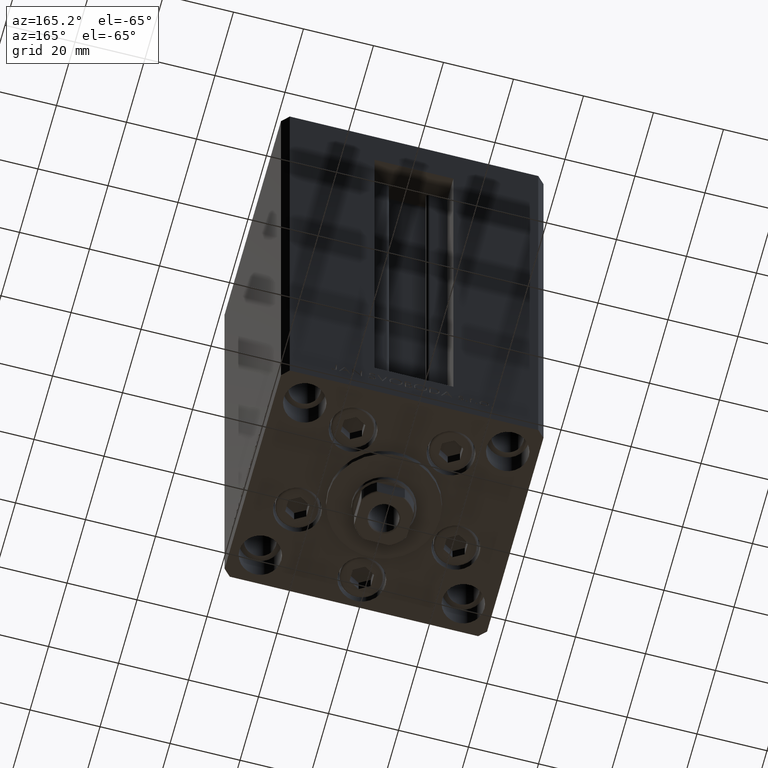
[diagram: clean part render]
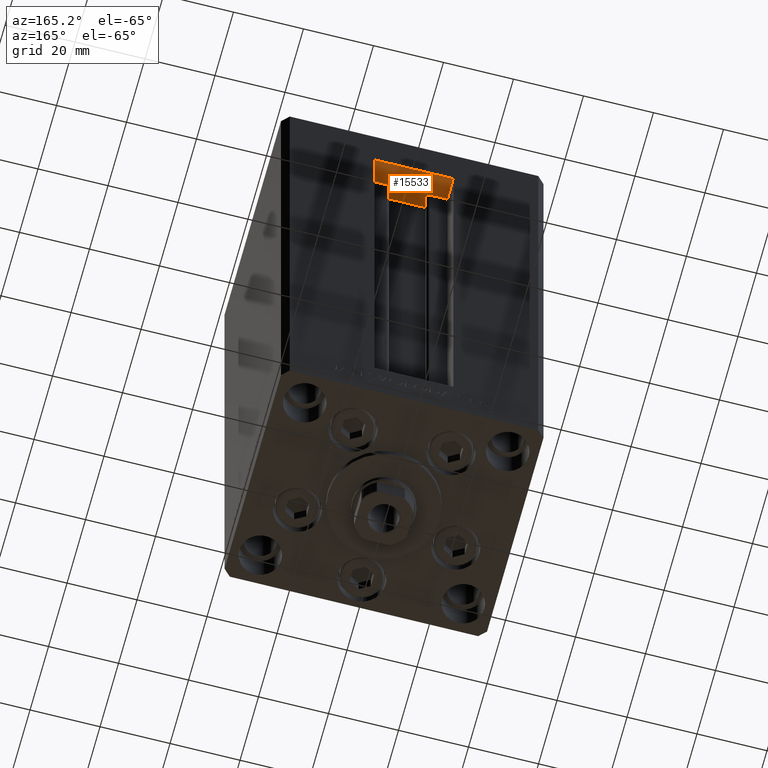
[diagram: same view with one face highlighted and labeled with its STEP entity id]
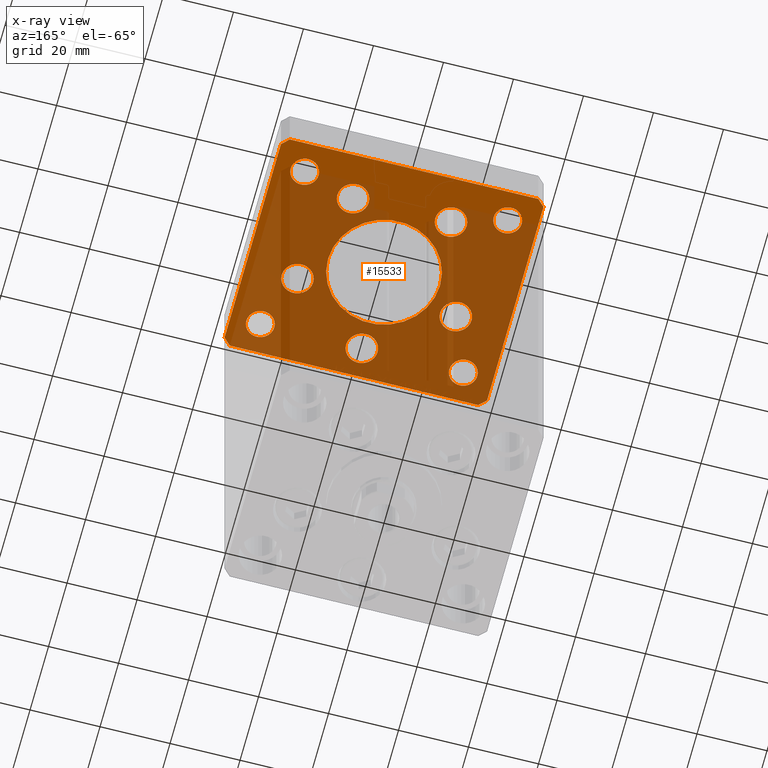
[diagram: x-ray of the same camera — body ghosted, the highlighted face saturated]
A machine part, auxiliary view. The second image highlights one B-rep face of the part: STEP entity #15533.
The next image is the same camera in x-ray: the body ghosted, the highlighted face saturated — about 77% of this face is hidden behind the body in this view.
In plain terms, the highlighted planar face has unit normal (0, 0, 1).
Its self-contained STEP definition (entity closure, byte-faithful):
#187 = DIRECTION ( 'NONE',  ( 1.000000000000000000, 0.000000000000000000, 0.000000000000000000 ) ) ;
#208 = DIRECTION ( 'NONE',  ( 0.000000000000000000, -0.000000000000000000, -1.000000000000000000 ) ) ;
#239 = DIRECTION ( 'NONE',  ( 0.000000000000000000, -0.000000000000000000, -1.000000000000000000 ) ) ;
#329 = CARTESIAN_POINT ( 'NONE',  ( 35.49999999999992184, 32.50000000000000711, -15.00000000000000000 ) ) ;
#390 = VERTEX_POINT ( 'NONE', #32373 ) ;
#466 = CIRCLE ( 'NONE', #35749, 4.499999999999997335 ) ;
#544 = DIRECTION ( 'NONE',  ( 0.000000000000000000, -0.000000000000000000, -1.000000000000000000 ) ) ;
#570 = AXIS2_PLACEMENT_3D ( 'NONE', #22350, #21347, #37200 ) ;
#587 = EDGE_CURVE ( 'NONE', #43050, #22081, #6943, .T. ) ;
#755 = EDGE_LOOP ( 'NONE', ( #2011, #47641 ) ) ;
#867 = DIRECTION ( 'NONE',  ( 1.000000000000000000, 0.000000000000000000, 0.000000000000000000 ) ) ;
#971 = ORIENTED_EDGE ( 'NONE', *, *, #15289, .F. ) ;
#1063 = LINE ( 'NONE', #329, #49516 ) ;
#1241 = CIRCLE ( 'NONE', #34122, 4.500000000000005329 ) ;
#1283 = DIRECTION ( 'NONE',  ( 1.000000000000000000, 0.000000000000000000, 0.000000000000000000 ) ) ;
#1385 = AXIS2_PLACEMENT_3D ( 'NONE', #26042, #7694, #187 ) ;
#1599 = AXIS2_PLACEMENT_3D ( 'NONE', #2340, #44558, #40302 ) ;
#1770 = CARTESIAN_POINT ( 'NONE',  ( -37.50000000000001421, 30.49999999999998579, -15.00000000000000000 ) ) ;
#2011 = ORIENTED_EDGE ( 'NONE', *, *, #13946, .F. ) ;
#2340 = CARTESIAN_POINT ( 'NONE',  ( 29.00000000000001066, -23.99999999999999289, -15.00000000000000000 ) ) ;
#2656 = AXIS2_PLACEMENT_3D ( 'NONE', #31404, #16822, #19845 ) ;
#2886 = VERTEX_POINT ( 'NONE', #7468 ) ;
#3064 = ORIENTED_EDGE ( 'NONE', *, *, #33205, .F. ) ;
#3243 = ORIENTED_EDGE ( 'NONE', *, *, #31740, .F. ) ;
#3297 = CARTESIAN_POINT ( 'NONE',  ( 2.939152317953647500E-15, -24.00000000000000000, -15.00000000000000000 ) ) ;
#3401 = VERTEX_POINT ( 'NONE', #20183 ) ;
#3456 = VERTEX_POINT ( 'NONE', #8381 ) ;
#3714 = AXIS2_PLACEMENT_3D ( 'NONE', #41664, #15009, #30331 ) ;
#3966 = DIRECTION ( 'NONE',  ( 1.000000000000000000, 0.000000000000000000, 0.000000000000000000 ) ) ;
#4332 = DIRECTION ( 'NONE',  ( -1.000000000000000000, -1.954618001100629052E-16, 0.000000000000000000 ) ) ;
#4549 = DIRECTION ( 'NONE',  ( 1.000000000000000000, 0.000000000000000000, 0.000000000000000000 ) ) ;
#4682 = CARTESIAN_POINT ( 'NONE',  ( -27.12741699796951877, -8.000000000000005329, -15.00000000000000000 ) ) ;
#4886 = CARTESIAN_POINT ( 'NONE',  ( -35.50000000000002842, 32.49999999999999289, -15.00000000000000000 ) ) ;
#5029 = VECTOR ( 'NONE', #13356, 1000.000000000000114 ) ;
#5266 = ORIENTED_EDGE ( 'NONE', *, *, #33967, .F. ) ;
#5279 = CARTESIAN_POINT ( 'NONE',  ( 2.939152317953647500E-15, -24.00000000000000000, -15.00000000000000000 ) ) ;
#5326 = LINE ( 'NONE', #8845, #5029 ) ;
#5375 = DIRECTION ( 'NONE',  ( -1.478780668045802821E-15, 1.000000000000000000, 0.000000000000000000 ) ) ;
#5645 = DIRECTION ( 'NONE',  ( 4.550094363217855288E-16, -1.000000000000000000, 0.000000000000000000 ) ) ;
#5731 = ORIENTED_EDGE ( 'NONE', *, *, #10643, .F. ) ;
#6105 = CIRCLE ( 'NONE', #3714, 4.499999999999999112 ) ;
#6172 = AXIS2_PLACEMENT_3D ( 'NONE', #43088, #26981, #867 ) ;
#6272 = EDGE_CURVE ( 'NONE', #23648, #16491, #22249, .T. ) ;
#6943 = CIRCLE ( 'NONE', #42320, 4.500000000000000888 ) ;
#6946 = FACE_BOUND ( 'NONE', #17068, .T. ) ;
#7227 = CARTESIAN_POINT ( 'NONE',  ( 22.62741699796951877, -8.000000000000000000, -15.00000000000000000 ) ) ;
#7357 = EDGE_CURVE ( 'NONE', #27183, #48771, #28723, .T. ) ;
#7450 = PLANE ( 'NONE',  #1385 ) ;
#7468 = CARTESIAN_POINT ( 'NONE',  ( -18.49106857963322526, 19.49999999999999645, -15.00000000000000000 ) ) ;
#7694 = DIRECTION ( 'NONE',  ( -0.000000000000000000, 0.000000000000000000, 1.000000000000000000 ) ) ;
#7816 = EDGE_LOOP ( 'NONE', ( #3243, #39643, #33123, #14553, #5266, #39928, #971, #11530 ) ) ;
#8083 = DIRECTION ( 'NONE',  ( -0.000000000000000000, -0.000000000000000000, -1.000000000000000000 ) ) ;
#8224 = CIRCLE ( 'NONE', #10610, 4.000000000000000000 ) ;
#8234 = EDGE_LOOP ( 'NONE', ( #34668, #42903 ) ) ;
#8248 = CARTESIAN_POINT ( 'NONE',  ( -22.62741699796951877, -8.000000000000005329, -15.00000000000000000 ) ) ;
#8285 = ORIENTED_EDGE ( 'NONE', *, *, #26987, .F. ) ;
#8375 = EDGE_CURVE ( 'NONE', #38613, #42159, #28257, .T. ) ;
#8381 = CARTESIAN_POINT ( 'NONE',  ( 25.00000000000000711, -23.99999999999999289, -15.00000000000000000 ) ) ;
#8441 = AXIS2_PLACEMENT_3D ( 'NONE', #38252, #8083, #42280 ) ;
#8702 = VECTOR ( 'NONE', #5645, 1000.000000000000000 ) ;
#8729 = EDGE_LOOP ( 'NONE', ( #13237, #10373 ) ) ;
#8833 = DIRECTION ( 'NONE',  ( 0.000000000000000000, -0.000000000000000000, -1.000000000000000000 ) ) ;
#8845 = CARTESIAN_POINT ( 'NONE',  ( -37.49999999999998579, -30.50000000000001421, -15.00000000000000000 ) ) ;
#9474 = EDGE_LOOP ( 'NONE', ( #12717, #24962 ) ) ;
#9759 = CARTESIAN_POINT ( 'NONE',  ( -29.00000000000001066, 24.00000000000000711, -15.00000000000000000 ) ) ;
#9792 = DIRECTION ( 'NONE',  ( -1.000000000000000000, 0.000000000000000000, 0.000000000000000000 ) ) ;
#10330 = CIRCLE ( 'NONE', #38449, 4.500000000000001776 ) ;
#10373 = ORIENTED_EDGE ( 'NONE', *, *, #32089, .T. ) ;
#10556 = DIRECTION ( 'NONE',  ( 1.000000000000000000, 0.000000000000000000, 0.000000000000000000 ) ) ;
#10610 = AXIS2_PLACEMENT_3D ( 'NONE', #9759, #40446, #29861 ) ;
#10643 = EDGE_CURVE ( 'NONE', #29488, #48349, #31719, .T. ) ;
#10717 = FACE_BOUND ( 'NONE', #8729, .T. ) ;
#11019 = VECTOR ( 'NONE', #16533, 1000.000000000000000 ) ;
#11191 = CARTESIAN_POINT ( 'NONE',  ( 35.49999999999992184, 32.50000000000000711, -15.00000000000000000 ) ) ;
#11221 = FACE_BOUND ( 'NONE', #8234, .T. ) ;
#11234 = CIRCLE ( 'NONE', #1599, 4.000000000000003553 ) ;
#11304 = CIRCLE ( 'NONE', #24145, 16.00000000000000000 ) ;
#11429 = EDGE_CURVE ( 'NONE', #48771, #27183, #466, .T. ) ;
#11456 = CARTESIAN_POINT ( 'NONE',  ( 4.500000000000003553, -24.00000000000000000, -15.00000000000000000 ) ) ;
#11530 = ORIENTED_EDGE ( 'NONE', *, *, #40882, .F. ) ;
#11994 = AXIS2_PLACEMENT_3D ( 'NONE', #35927, #35194, #23619 ) ;
#12000 = EDGE_CURVE ( 'NONE', #39080, #3401, #27745, .T. ) ;
#12004 = LINE ( 'NONE', #49707, #20405 ) ;
#12023 = VERTEX_POINT ( 'NONE', #42777 ) ;
#12423 = CARTESIAN_POINT ( 'NONE',  ( -16.00000000000000000, 1.959434878635764737E-15, -15.00000000000000000 ) ) ;
#12717 = ORIENTED_EDGE ( 'NONE', *, *, #7357, .F. ) ;
#13164 = DIRECTION ( 'NONE',  ( 1.000000000000000000, 0.000000000000000000, 0.000000000000000000 ) ) ;
#13237 = ORIENTED_EDGE ( 'NONE', *, *, #14915, .T. ) ;
#13356 = DIRECTION ( 'NONE',  ( 0.7071067811865474617, -0.7071067811865474617, 0.000000000000000000 ) ) ;
#13365 = EDGE_CURVE ( 'NONE', #2886, #21694, #6105, .T. ) ;
#13946 = EDGE_CURVE ( 'NONE', #48567, #47594, #36672, .T. ) ;
#14031 = VECTOR ( 'NONE', #5375, 1000.000000000000000 ) ;
#14101 = CARTESIAN_POINT ( 'NONE',  ( -35.49999999999998579, -32.50000000000001421, -15.00000000000000000 ) ) ;
#14135 = DIRECTION ( 'NONE',  ( 1.000000000000000000, 0.000000000000000000, 0.000000000000000000 ) ) ;
#14173 = AXIS2_PLACEMENT_3D ( 'NONE', #37254, #45300, #14135 ) ;
#14553 = ORIENTED_EDGE ( 'NONE', *, *, #46458, .F. ) ;
#14571 = VERTEX_POINT ( 'NONE', #19494 ) ;
#14802 = ORIENTED_EDGE ( 'NONE', *, *, #19771, .F. ) ;
#14915 = EDGE_CURVE ( 'NONE', #43348, #21196, #16626, .T. ) ;
#15009 = DIRECTION ( 'NONE',  ( 0.000000000000000000, -0.000000000000000000, -1.000000000000000000 ) ) ;
#15246 = FACE_BOUND ( 'NONE', #48383, .T. ) ;
#15289 = EDGE_CURVE ( 'NONE', #44061, #14571, #45800, .T. ) ;
#15301 = ORIENTED_EDGE ( 'NONE', *, *, #45944, .F. ) ;
#15533 = ADVANCED_FACE ( 'NONE', ( #49175, #45169, #33589, #15246, #34343, #6946, #11221, #10717, #18757, #30567, #19256 ), #7450, .F. ) ;
#15769 = DIRECTION ( 'NONE',  ( 1.000000000000000000, 9.773090005503140331E-17, 0.000000000000000000 ) ) ;
#16201 = EDGE_CURVE ( 'NONE', #390, #3456, #39964, .T. ) ;
#16491 = VERTEX_POINT ( 'NONE', #25304 ) ;
#16533 = DIRECTION ( 'NONE',  ( 0.7071067811865487940, 0.7071067811865463515, 0.000000000000000000 ) ) ;
#16626 = CIRCLE ( 'NONE', #6172, 4.000000000000000000 ) ;
#16822 = DIRECTION ( 'NONE',  ( -0.000000000000000000, -0.000000000000000000, -1.000000000000000000 ) ) ;
#17068 = EDGE_LOOP ( 'NONE', ( #14802, #42731 ) ) ;
#17315 = ORIENTED_EDGE ( 'NONE', *, *, #587, .F. ) ;
#18366 = DIRECTION ( 'NONE',  ( 0.000000000000000000, -0.000000000000000000, -1.000000000000000000 ) ) ;
#18757 = FACE_OUTER_BOUND ( 'NONE', #7816, .T. ) ;
#18783 = CARTESIAN_POINT ( 'NONE',  ( -35.50000000000002842, 32.49999999999999289, -15.00000000000000000 ) ) ;
#19256 = FACE_BOUND ( 'NONE', #41377, .T. ) ;
#19494 = CARTESIAN_POINT ( 'NONE',  ( 37.50000000000001421, -30.50000000000000711, -15.00000000000000000 ) ) ;
#19771 = EDGE_CURVE ( 'NONE', #21694, #2886, #35926, .T. ) ;
#19845 = DIRECTION ( 'NONE',  ( -1.000000000000000000, 0.000000000000000000, 0.000000000000000000 ) ) ;
#19871 = DIRECTION ( 'NONE',  ( 0.000000000000000000, 0.000000000000000000, 1.000000000000000000 ) ) ;
#20183 = CARTESIAN_POINT ( 'NONE',  ( 25.00000000000000711, 24.00000000000000711, -15.00000000000000000 ) ) ;
#20405 = VECTOR ( 'NONE', #15769, 1000.000000000000000 ) ;
#20687 = DIRECTION ( 'NONE',  ( 0.000000000000000000, -0.000000000000000000, -1.000000000000000000 ) ) ;
#20861 = CARTESIAN_POINT ( 'NONE',  ( 29.00000000000001066, -23.99999999999999289, -15.00000000000000000 ) ) ;
#20898 = VERTEX_POINT ( 'NONE', #11191 ) ;
#21137 = DIRECTION ( 'NONE',  ( -0.7071067811865482389, 0.7071067811865469066, 0.000000000000000000 ) ) ;
#21196 = VERTEX_POINT ( 'NONE', #30914 ) ;
#21288 = CARTESIAN_POINT ( 'NONE',  ( 33.00000000000001421, 24.00000000000000711, -15.00000000000000000 ) ) ;
#21347 = DIRECTION ( 'NONE',  ( 0.000000000000000000, -0.000000000000000000, -1.000000000000000000 ) ) ;
#21694 = VERTEX_POINT ( 'NONE', #44404 ) ;
#22081 = VERTEX_POINT ( 'NONE', #28174 ) ;
#22249 = CIRCLE ( 'NONE', #39939, 4.500000000000005329 ) ;
#22350 = CARTESIAN_POINT ( 'NONE',  ( 0.000000000000000000, 0.000000000000000000, -15.00000000000000000 ) ) ;
#22821 = EDGE_CURVE ( 'NONE', #46165, #38613, #45448, .T. ) ;
#23309 = VERTEX_POINT ( 'NONE', #14101 ) ;
#23434 = VECTOR ( 'NONE', #21137, 999.9999999999998863 ) ;
#23459 = EDGE_CURVE ( 'NONE', #47594, #48567, #10330, .T. ) ;
#23619 = DIRECTION ( 'NONE',  ( 1.000000000000000000, 0.000000000000000000, 0.000000000000000000 ) ) ;
#23648 = VERTEX_POINT ( 'NONE', #43489 ) ;
#23651 = EDGE_CURVE ( 'NONE', #3401, #39080, #26452, .T. ) ;
#24145 = AXIS2_PLACEMENT_3D ( 'NONE', #43958, #48462, #40931 ) ;
#24166 = DIRECTION ( 'NONE',  ( 1.000000000000000000, 0.000000000000000000, 0.000000000000000000 ) ) ;
#24679 = AXIS2_PLACEMENT_3D ( 'NONE', #36783, #20687, #13164 ) ;
#24962 = ORIENTED_EDGE ( 'NONE', *, *, #11429, .F. ) ;
#25304 = CARTESIAN_POINT ( 'NONE',  ( 9.491068579633218150, 19.50000000000000000, -15.00000000000000000 ) ) ;
#25438 = EDGE_CURVE ( 'NONE', #3456, #390, #11234, .T. ) ;
#25642 = CARTESIAN_POINT ( 'NONE',  ( 13.99106857963322348, 19.50000000000000000, -15.00000000000000000 ) ) ;
#26042 = CARTESIAN_POINT ( 'NONE',  ( 0.000000000000000000, 0.000000000000000000, -15.00000000000000000 ) ) ;
#26417 = VECTOR ( 'NONE', #49701, 1000.000000000000000 ) ;
#26452 = CIRCLE ( 'NONE', #11994, 4.000000000000003553 ) ;
#26920 = CARTESIAN_POINT ( 'NONE',  ( 35.50000000000000711, -32.50000000000000711, -15.00000000000000000 ) ) ;
#26981 = DIRECTION ( 'NONE',  ( 0.000000000000000000, 0.000000000000000000, 1.000000000000000000 ) ) ;
#26987 = EDGE_CURVE ( 'NONE', #12023, #39169, #11304, .T. ) ;
#27183 = VERTEX_POINT ( 'NONE', #28990 ) ;
#27584 = DIRECTION ( 'NONE',  ( 1.000000000000000000, 0.000000000000000000, 0.000000000000000000 ) ) ;
#27653 = CARTESIAN_POINT ( 'NONE',  ( 29.00000000000001066, 24.00000000000000711, -15.00000000000000000 ) ) ;
#27745 = CIRCLE ( 'NONE', #35789, 4.000000000000003553 ) ;
#27824 = EDGE_LOOP ( 'NONE', ( #39789, #37070 ) ) ;
#28174 = CARTESIAN_POINT ( 'NONE',  ( 27.12741699796952233, -8.000000000000000000, -15.00000000000000000 ) ) ;
#28257 = LINE ( 'NONE', #36060, #8702 ) ;
#28630 = AXIS2_PLACEMENT_3D ( 'NONE', #5279, #544, #4549 ) ;
#28723 = CIRCLE ( 'NONE', #44816, 4.499999999999997335 ) ;
#28990 = CARTESIAN_POINT ( 'NONE',  ( -18.12741699796952233, -8.000000000000005329, -15.00000000000000000 ) ) ;
#29488 = VERTEX_POINT ( 'NONE', #41144 ) ;
#29861 = DIRECTION ( 'NONE',  ( 1.000000000000000000, 0.000000000000000000, 0.000000000000000000 ) ) ;
#30331 = DIRECTION ( 'NONE',  ( 1.000000000000000000, 0.000000000000000000, 0.000000000000000000 ) ) ;
#30567 = FACE_BOUND ( 'NONE', #40862, .T. ) ;
#30914 = CARTESIAN_POINT ( 'NONE',  ( -33.00000000000000711, 24.00000000000000711, -15.00000000000000000 ) ) ;
#31111 = CARTESIAN_POINT ( 'NONE',  ( -25.00000000000001066, -23.99999999999999289, -15.00000000000000000 ) ) ;
#31323 = ORIENTED_EDGE ( 'NONE', *, *, #45547, .F. ) ;
#31404 = CARTESIAN_POINT ( 'NONE',  ( -29.00000000000001066, -23.99999999999999289, -15.00000000000000000 ) ) ;
#31719 = CIRCLE ( 'NONE', #8441, 3.999999999999996447 ) ;
#31740 = EDGE_CURVE ( 'NONE', #42159, #23309, #5326, .T. ) ;
#32089 = EDGE_CURVE ( 'NONE', #21196, #43348, #8224, .T. ) ;
#32373 = CARTESIAN_POINT ( 'NONE',  ( 33.00000000000001421, -23.99999999999999289, -15.00000000000000000 ) ) ;
#32952 = CARTESIAN_POINT ( 'NONE',  ( 18.12741699796951877, -8.000000000000000000, -15.00000000000000000 ) ) ;
#33123 = ORIENTED_EDGE ( 'NONE', *, *, #22821, .F. ) ;
#33205 = EDGE_CURVE ( 'NONE', #48349, #29488, #37974, .T. ) ;
#33589 = FACE_BOUND ( 'NONE', #755, .T. ) ;
#33610 = ORIENTED_EDGE ( 'NONE', *, *, #25438, .F. ) ;
#33940 = DIRECTION ( 'NONE',  ( 1.000000000000000000, 0.000000000000000000, 0.000000000000000000 ) ) ;
#33967 = EDGE_CURVE ( 'NONE', #45143, #20898, #40032, .T. ) ;
#34122 = AXIS2_PLACEMENT_3D ( 'NONE', #25642, #45256, #10556 ) ;
#34232 = CIRCLE ( 'NONE', #570, 16.00000000000000000 ) ;
#34343 = FACE_BOUND ( 'NONE', #27824, .T. ) ;
#34668 = ORIENTED_EDGE ( 'NONE', *, *, #12000, .T. ) ;
#35063 = CIRCLE ( 'NONE', #14173, 4.500000000000000888 ) ;
#35194 = DIRECTION ( 'NONE',  ( 0.000000000000000000, 0.000000000000000000, 1.000000000000000000 ) ) ;
#35749 = AXIS2_PLACEMENT_3D ( 'NONE', #8248, #239, #27584 ) ;
#35789 = AXIS2_PLACEMENT_3D ( 'NONE', #27653, #19871, #1283 ) ;
#35879 = ORIENTED_EDGE ( 'NONE', *, *, #16201, .F. ) ;
#35926 = CIRCLE ( 'NONE', #24679, 4.499999999999999112 ) ;
#35927 = CARTESIAN_POINT ( 'NONE',  ( 29.00000000000001066, 24.00000000000000711, -15.00000000000000000 ) ) ;
#36029 = DIRECTION ( 'NONE',  ( 1.000000000000000000, 0.000000000000000000, 0.000000000000000000 ) ) ;
#36060 = CARTESIAN_POINT ( 'NONE',  ( -37.50000000000001421, 30.49999999999998579, -15.00000000000000000 ) ) ;
#36672 = CIRCLE ( 'NONE', #28630, 4.500000000000001776 ) ;
#36783 = CARTESIAN_POINT ( 'NONE',  ( -13.99106857963322703, 19.49999999999999645, -15.00000000000000000 ) ) ;
#37070 = ORIENTED_EDGE ( 'NONE', *, *, #39542, .F. ) ;
#37200 = DIRECTION ( 'NONE',  ( 1.000000000000000000, 0.000000000000000000, 0.000000000000000000 ) ) ;
#37254 = CARTESIAN_POINT ( 'NONE',  ( 22.62741699796951877, -8.000000000000000000, -15.00000000000000000 ) ) ;
#37851 = CARTESIAN_POINT ( 'NONE',  ( 35.50000000000000711, -32.50000000000000711, -15.00000000000000000 ) ) ;
#37974 = CIRCLE ( 'NONE', #2656, 3.999999999999996447 ) ;
#38029 = CARTESIAN_POINT ( 'NONE',  ( -37.49999999999998579, -30.50000000000001421, -15.00000000000000000 ) ) ;
#38252 = CARTESIAN_POINT ( 'NONE',  ( -29.00000000000001066, -23.99999999999999289, -15.00000000000000000 ) ) ;
#38449 = AXIS2_PLACEMENT_3D ( 'NONE', #3297, #18366, #33940 ) ;
#38613 = VERTEX_POINT ( 'NONE', #1770 ) ;
#39080 = VERTEX_POINT ( 'NONE', #21288 ) ;
#39169 = VERTEX_POINT ( 'NONE', #12423 ) ;
#39296 = CARTESIAN_POINT ( 'NONE',  ( 37.49999999999992184, 30.50000000000001066, -15.00000000000000000 ) ) ;
#39542 = EDGE_CURVE ( 'NONE', #16491, #23648, #1241, .T. ) ;
#39643 = ORIENTED_EDGE ( 'NONE', *, *, #8375, .F. ) ;
#39707 = CARTESIAN_POINT ( 'NONE',  ( -25.00000000000001066, 24.00000000000000711, -15.00000000000000000 ) ) ;
#39740 = DIRECTION ( 'NONE',  ( -0.000000000000000000, -0.000000000000000000, -1.000000000000000000 ) ) ;
#39789 = ORIENTED_EDGE ( 'NONE', *, *, #6272, .F. ) ;
#39928 = ORIENTED_EDGE ( 'NONE', *, *, #41979, .F. ) ;
#39939 = AXIS2_PLACEMENT_3D ( 'NONE', #44560, #40067, #36029 ) ;
#39964 = CIRCLE ( 'NONE', #48770, 4.000000000000003553 ) ;
#40032 = LINE ( 'NONE', #39296, #23434 ) ;
#40067 = DIRECTION ( 'NONE',  ( 0.000000000000000000, -0.000000000000000000, -1.000000000000000000 ) ) ;
#40077 = CARTESIAN_POINT ( 'NONE',  ( 37.50000000000001421, -30.50000000000000711, -15.00000000000000000 ) ) ;
#40302 = DIRECTION ( 'NONE',  ( -1.000000000000000000, 0.000000000000000000, 0.000000000000000000 ) ) ;
#40351 = CARTESIAN_POINT ( 'NONE',  ( 37.49999999999992184, 30.50000000000001066, -15.00000000000000000 ) ) ;
#40446 = DIRECTION ( 'NONE',  ( 0.000000000000000000, 0.000000000000000000, 1.000000000000000000 ) ) ;
#40448 = EDGE_LOOP ( 'NONE', ( #8285, #15301 ) ) ;
#40862 = EDGE_LOOP ( 'NONE', ( #35879, #33610 ) ) ;
#40882 = EDGE_CURVE ( 'NONE', #23309, #44061, #12004, .T. ) ;
#40931 = DIRECTION ( 'NONE',  ( 1.000000000000000000, 0.000000000000000000, 0.000000000000000000 ) ) ;
#41144 = CARTESIAN_POINT ( 'NONE',  ( -33.00000000000000711, -23.99999999999999289, -15.00000000000000000 ) ) ;
#41377 = EDGE_LOOP ( 'NONE', ( #3064, #5731 ) ) ;
#41664 = CARTESIAN_POINT ( 'NONE',  ( -13.99106857963322703, 19.49999999999999645, -15.00000000000000000 ) ) ;
#41979 = EDGE_CURVE ( 'NONE', #14571, #45143, #47359, .T. ) ;
#42159 = VERTEX_POINT ( 'NONE', #38029 ) ;
#42280 = DIRECTION ( 'NONE',  ( -1.000000000000000000, 0.000000000000000000, 0.000000000000000000 ) ) ;
#42320 = AXIS2_PLACEMENT_3D ( 'NONE', #7227, #208, #3966 ) ;
#42731 = ORIENTED_EDGE ( 'NONE', *, *, #13365, .F. ) ;
#42777 = CARTESIAN_POINT ( 'NONE',  ( 16.00000000000000000, 0.000000000000000000, -15.00000000000000000 ) ) ;
#42903 = ORIENTED_EDGE ( 'NONE', *, *, #23651, .T. ) ;
#43050 = VERTEX_POINT ( 'NONE', #32952 ) ;
#43088 = CARTESIAN_POINT ( 'NONE',  ( -29.00000000000001066, 24.00000000000000711, -15.00000000000000000 ) ) ;
#43299 = CARTESIAN_POINT ( 'NONE',  ( -22.62741699796951877, -8.000000000000005329, -15.00000000000000000 ) ) ;
#43348 = VERTEX_POINT ( 'NONE', #39707 ) ;
#43489 = CARTESIAN_POINT ( 'NONE',  ( 18.49106857963322881, 19.50000000000000000, -15.00000000000000000 ) ) ;
#43958 = CARTESIAN_POINT ( 'NONE',  ( 0.000000000000000000, 0.000000000000000000, -15.00000000000000000 ) ) ;
#44061 = VERTEX_POINT ( 'NONE', #37851 ) ;
#44404 = CARTESIAN_POINT ( 'NONE',  ( -9.491068579633228808, 19.49999999999999645, -15.00000000000000000 ) ) ;
#44558 = DIRECTION ( 'NONE',  ( -0.000000000000000000, -0.000000000000000000, -1.000000000000000000 ) ) ;
#44560 = CARTESIAN_POINT ( 'NONE',  ( 13.99106857963322348, 19.50000000000000000, -15.00000000000000000 ) ) ;
#44816 = AXIS2_PLACEMENT_3D ( 'NONE', #43299, #8833, #24166 ) ;
#45143 = VERTEX_POINT ( 'NONE', #40351 ) ;
#45169 = FACE_BOUND ( 'NONE', #9474, .T. ) ;
#45256 = DIRECTION ( 'NONE',  ( 0.000000000000000000, -0.000000000000000000, -1.000000000000000000 ) ) ;
#45300 = DIRECTION ( 'NONE',  ( 0.000000000000000000, -0.000000000000000000, -1.000000000000000000 ) ) ;
#45448 = LINE ( 'NONE', #18783, #26417 ) ;
#45547 = EDGE_CURVE ( 'NONE', #22081, #43050, #35063, .T. ) ;
#45800 = LINE ( 'NONE', #26920, #11019 ) ;
#45944 = EDGE_CURVE ( 'NONE', #39169, #12023, #34232, .T. ) ;
#46165 = VERTEX_POINT ( 'NONE', #4886 ) ;
#46458 = EDGE_CURVE ( 'NONE', #20898, #46165, #1063, .T. ) ;
#47359 = LINE ( 'NONE', #40077, #14031 ) ;
#47594 = VERTEX_POINT ( 'NONE', #49104 ) ;
#47641 = ORIENTED_EDGE ( 'NONE', *, *, #23459, .F. ) ;
#48349 = VERTEX_POINT ( 'NONE', #31111 ) ;
#48383 = EDGE_LOOP ( 'NONE', ( #31323, #17315 ) ) ;
#48462 = DIRECTION ( 'NONE',  ( 0.000000000000000000, -0.000000000000000000, -1.000000000000000000 ) ) ;
#48567 = VERTEX_POINT ( 'NONE', #11456 ) ;
#48770 = AXIS2_PLACEMENT_3D ( 'NONE', #20861, #39740, #9792 ) ;
#48771 = VERTEX_POINT ( 'NONE', #4682 ) ;
#49104 = CARTESIAN_POINT ( 'NONE',  ( -4.499999999999999112, -24.00000000000000000, -15.00000000000000000 ) ) ;
#49175 = FACE_BOUND ( 'NONE', #40448, .T. ) ;
#49516 = VECTOR ( 'NONE', #4332, 1000.000000000000000 ) ;
#49701 = DIRECTION ( 'NONE',  ( -0.7071067811865426878, -0.7071067811865524577, 0.000000000000000000 ) ) ;
#49707 = CARTESIAN_POINT ( 'NONE',  ( -35.49999999999998579, -32.50000000000001421, -15.00000000000000000 ) ) ;